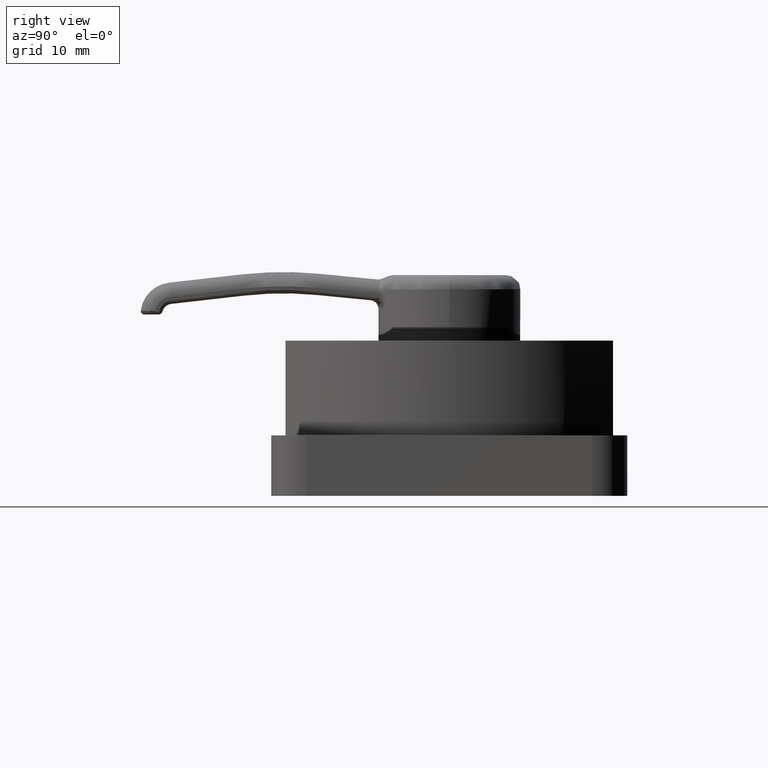
[diagram: clean part render]
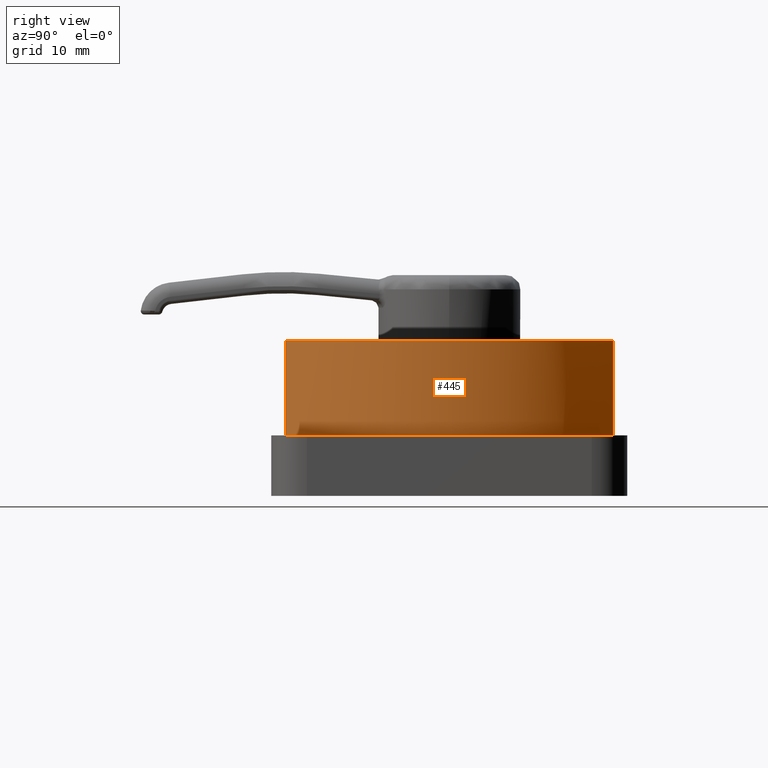
[diagram: same view with one face highlighted and labeled with its STEP entity id]
A machine part, right view. The second image highlights one B-rep face of the part: STEP entity #445.
In plain terms, the highlighted cylindrical surface (partial cylindrical patch) has radius 26.8462 mm, axis along (0, 0, 1).
Its self-contained STEP definition (entity closure, byte-faithful):
#319=CARTESIAN_POINT('',(52.0,22.999999999999936,8.500000000000000));
#320=VERTEX_POINT('',#319);
#353=CARTESIAN_POINT('',(52.0,-22.999999999999979,8.500000000000000));
#354=VERTEX_POINT('',#353);
#361=CARTESIAN_POINT('',(52.0,-22.999999999999979,21.800000000000001));
#362=VERTEX_POINT('',#361);
#363=CARTESIAN_POINT('',(52.0,-22.999999999999979,8.500000000000000));
#364=DIRECTION('',(0.0,0.0,1.0));
#365=VECTOR('',#364,13.300000000000001);
#366=LINE('',#363,#365);
#367=EDGE_CURVE('',#354,#362,#366,.T.);
#369=CARTESIAN_POINT('',(52.0,22.999999999999936,21.800000000000001));
#370=VERTEX_POINT('',#369);
#377=CARTESIAN_POINT('',(52.0,22.999999999999936,8.500000000000000));
#378=DIRECTION('',(0.0,0.0,1.0));
#379=VECTOR('',#378,13.300000000000001);
#380=LINE('',#377,#379);
#381=EDGE_CURVE('',#320,#370,#380,.T.);
#386=CARTESIAN_POINT('',(38.153846153846118,-3.309421E-014,8.499999989999999));
#387=DIRECTION('',(0.0,0.0,1.0));
#388=DIRECTION('',(-1.0,1.224647E-016,0.0));
#389=AXIS2_PLACEMENT_3D('',#386,#387,#388);
#390=CYLINDRICAL_SURFACE('',#389,26.846153846153840);
#391=CARTESIAN_POINT('',(38.153846153846104,-3.552714E-015,21.800000000000001));
#392=DIRECTION('',(0.0,0.0,1.0));
#393=DIRECTION('',(0.515759312320918,-0.856733524355300,0.0));
#394=AXIS2_PLACEMENT_3D('',#391,#392,#393);
#395=CIRCLE('',#394,26.846153846153840);
#396=EDGE_CURVE('',#362,#370,#395,.T.);
#397=ORIENTED_EDGE('',*,*,#396,.F.);
#398=ORIENTED_EDGE('',*,*,#367,.F.);
#399=CARTESIAN_POINT('',(59.033483318560769,-16.874736389088476,8.500000000000000));
#400=VERTEX_POINT('',#399);
#401=CARTESIAN_POINT('',(38.153846153846104,-3.552714E-015,8.500000000000000));
#402=DIRECTION('',(0.0,0.0,1.0));
#403=DIRECTION('',(0.515759312320918,-0.856733524355300,0.0));
#404=AXIS2_PLACEMENT_3D('',#401,#402,#403);
#405=CIRCLE('',#404,26.846153846153840);
#406=EDGE_CURVE('',#354,#400,#405,.T.);
#407=ORIENTED_EDGE('',*,*,#406,.T.);
#408=CARTESIAN_POINT('',(59.909719393459369,-15.728889214221091,8.500000000000000));
#409=VERTEX_POINT('',#408);
#410=CARTESIAN_POINT('',(38.153846153846104,-3.552714E-015,8.500000000000000));
#411=DIRECTION('',(0.0,0.0,1.0));
#412=DIRECTION('',(0.515759312320918,-0.856733524355300,0.0));
#413=AXIS2_PLACEMENT_3D('',#410,#411,#412);
#414=CIRCLE('',#413,26.846153846153840);
#415=EDGE_CURVE('',#400,#409,#414,.T.);
#416=ORIENTED_EDGE('',*,*,#415,.T.);
#417=CARTESIAN_POINT('',(59.909719393459312,15.728889214221162,8.500000000000000));
#418=VERTEX_POINT('',#417);
#419=CARTESIAN_POINT('',(38.153846153846104,-3.552714E-015,8.500000000000000));
#420=DIRECTION('',(0.0,0.0,1.0));
#421=DIRECTION('',(0.515759312320918,-0.856733524355300,0.0));
#422=AXIS2_PLACEMENT_3D('',#419,#420,#421);
#423=CIRCLE('',#422,26.846153846153840);
#424=EDGE_CURVE('',#409,#418,#423,.T.);
#425=ORIENTED_EDGE('',*,*,#424,.T.);
#426=CARTESIAN_POINT('',(59.033483318560826,16.874736389088433,8.500000000000000));
#427=VERTEX_POINT('',#426);
#428=CARTESIAN_POINT('',(38.153846153846104,-3.552714E-015,8.500000000000000));
#429=DIRECTION('',(0.0,0.0,1.0));
#430=DIRECTION('',(0.515759312320918,-0.856733524355300,0.0));
#431=AXIS2_PLACEMENT_3D('',#428,#429,#430);
#432=CIRCLE('',#431,26.846153846153840);
#433=EDGE_CURVE('',#418,#427,#432,.T.);
#434=ORIENTED_EDGE('',*,*,#433,.T.);
#435=CARTESIAN_POINT('',(38.153846153846104,-3.552714E-015,8.500000000000000));
#436=DIRECTION('',(0.0,0.0,1.0));
#437=DIRECTION('',(0.515759312320918,-0.856733524355300,0.0));
#438=AXIS2_PLACEMENT_3D('',#435,#436,#437);
#439=CIRCLE('',#438,26.846153846153840);
#440=EDGE_CURVE('',#427,#320,#439,.T.);
#441=ORIENTED_EDGE('',*,*,#440,.T.);
#442=ORIENTED_EDGE('',*,*,#381,.T.);
#443=EDGE_LOOP('',(#397,#398,#407,#416,#425,#434,#441,#442));
#444=FACE_OUTER_BOUND('',#443,.T.);
#445=ADVANCED_FACE('',(#444),#390,.T.);